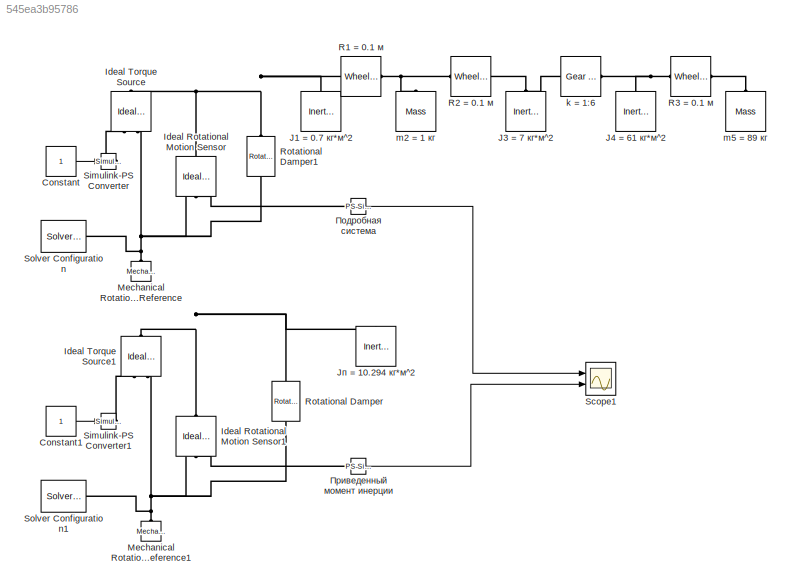
MODEL slx_545ea3b95786
KIND model
CONFIG AbsTol = auto
CONFIG EnableMultiTasking = off
CONFIG FixedStep = auto
CONFIG MaxStep = auto
CONFIG MinStep = auto
CONFIG RelTol = 1e-3
CONFIG SampleTimeConstraint = Unconstrained
CONFIG SolverName = VariableStepAuto
CONFIG StartTime = 0.0
CONFIG StopTime = 5
BLOCK [Constant] Constant
BLOCK [Constant] Constant1
BLOCK [Reference] Ideal Rotational Motion Sensor  REF=fl_lib/Mechanical/Mechanical Sensors/Ideal Rotational
Motion Sensor
  NameLocation = left
  Ports = [0, 0, 0, 0, 0, 1, 3]
  SourceBlock = fl_lib/Mechanical/Mechanical Sensors/Ideal Rotational\nMotion Sensor
  SourceProductBaseCode = SS
  SourceType = Ideal Rotational\nMotion Sensor
BLOCK [Reference] Ideal Rotational Motion Sensor1  REF=fl_lib/Mechanical/Mechanical Sensors/Ideal Rotational
Motion Sensor
  NameLocation = left
  Ports = [0, 0, 0, 0, 0, 1, 3]
  SourceBlock = fl_lib/Mechanical/Mechanical Sensors/Ideal Rotational\nMotion Sensor
  SourceProductBaseCode = SS
  SourceType = Ideal Rotational\nMotion Sensor
BLOCK [Reference] Ideal Torque Source  REF=fl_lib/Mechanical/Mechanical Sources/Ideal Torque Source
  NameLocation = right
  Ports = [0, 0, 0, 0, 0, 1, 2]
  SourceBlock = fl_lib/Mechanical/Mechanical Sources/Ideal Torque Source
  SourceProductBaseCode = SS
  SourceType = Ideal Torque Source
BLOCK [Reference] Ideal Torque Source1  REF=fl_lib/Mechanical/Mechanical Sources/Ideal Torque Source
  NameLocation = right
  Ports = [0, 0, 0, 0, 0, 1, 2]
  SourceBlock = fl_lib/Mechanical/Mechanical Sources/Ideal Torque Source
  SourceProductBaseCode = SS
  SourceType = Ideal Torque Source
BLOCK [Reference] J1 = 0.7 кг*м^2  REF=fl_lib/Mechanical/Rotational Elements/Inertia
  Ports = [0, 0, 0, 0, 0, 1]
  SourceBlock = fl_lib/Mechanical/Rotational Elements/Inertia
  SourceProductBaseCode = SS
  SourceType = Inertia
BLOCK [Reference] J3 = 7 кг*м^2  REF=fl_lib/Mechanical/Rotational Elements/Inertia
  Ports = [0, 0, 0, 0, 0, 1]
  SourceBlock = fl_lib/Mechanical/Rotational Elements/Inertia
  SourceProductBaseCode = SS
  SourceType = Inertia
BLOCK [Reference] J4 = 61 кг*м^2  REF=fl_lib/Mechanical/Rotational Elements/Inertia
  Ports = [0, 0, 0, 0, 0, 1]
  SourceBlock = fl_lib/Mechanical/Rotational Elements/Inertia
  SourceProductBaseCode = SS
  SourceType = Inertia
BLOCK [Reference] Jп = 10.294 кг*м^2  REF=fl_lib/Mechanical/Rotational Elements/Inertia
  Ports = [0, 0, 0, 0, 0, 1]
  SourceBlock = fl_lib/Mechanical/Rotational Elements/Inertia
  SourceProductBaseCode = SS
  SourceType = Inertia
BLOCK [Reference] Mechanical Rotational Reference  REF=fl_lib/Mechanical/Rotational Elements/Mechanical
Rotational Reference
  NameLocation = right
  Ports = [0, 0, 0, 0, 0, 1]
  SourceBlock = fl_lib/Mechanical/Rotational Elements/Mechanical\nRotational Reference
  SourceProductBaseCode = SS
  SourceType = Mechanical\nRotational Reference
BLOCK [Reference] Mechanical Rotational Reference1  REF=fl_lib/Mechanical/Rotational Elements/Mechanical
Rotational Reference
  NameLocation = right
  Ports = [0, 0, 0, 0, 0, 1]
  SourceBlock = fl_lib/Mechanical/Rotational Elements/Mechanical\nRotational Reference
  SourceProductBaseCode = SS
  SourceType = Mechanical\nRotational Reference
BLOCK [Reference] R1 = 0.1 м  REF=fl_lib/Mechanical/Mechanisms/Wheel and Axle
  NameLocation = top
  Ports = [0, 0, 0, 0, 0, 1, 1]
  SourceBlock = fl_lib/Mechanical/Mechanisms/Wheel and Axle
  SourceProductBaseCode = SS
  SourceType = Wheel and Axle
BLOCK [Reference] R2 = 0.1 м  REF=fl_lib/Mechanical/Mechanisms/Wheel and Axle
  NameLocation = top
  Ports = [0, 0, 0, 0, 0, 1, 1]
  SourceBlock = fl_lib/Mechanical/Mechanisms/Wheel and Axle
  SourceProductBaseCode = SS
  SourceType = Wheel and Axle
BLOCK [Reference] R3 = 0.1 м  REF=fl_lib/Mechanical/Mechanisms/Wheel and Axle
  NameLocation = top
  Ports = [0, 0, 0, 0, 0, 1, 1]
  SourceBlock = fl_lib/Mechanical/Mechanisms/Wheel and Axle
  SourceProductBaseCode = SS
  SourceType = Wheel and Axle
BLOCK [Reference] Rotational Damper  REF=fl_lib/Mechanical/Rotational Elements/Rotational Damper
  NameLocation = left
  Ports = [0, 0, 0, 0, 0, 1, 1]
  SourceBlock = fl_lib/Mechanical/Rotational Elements/Rotational Damper
  SourceProductBaseCode = SS
  SourceType = Rotational Damper
BLOCK [Reference] Rotational Damper1  REF=fl_lib/Mechanical/Rotational Elements/Rotational Damper
  NameLocation = left
  Ports = [0, 0, 0, 0, 0, 1, 1]
  SourceBlock = fl_lib/Mechanical/Rotational Elements/Rotational Damper
  SourceProductBaseCode = SS
  SourceType = Rotational Damper
BLOCK [Scope] Scope1
  Floating = off
  NumInputPorts = 2
  Ports = [2]
  ScopeSpecificationString = Simulink.scopes.TimeScopeBlockCfg('CurrentConfiguration', extmgr.ConfigurationSet(extmgr.Configuration('Core','General UI',true,'FigureColor',[1 1 1]),extmgr.Configuration('Core','Source UI',true),extmgr.Configuration('Sources','WiredSimulink',true,'DataLoggingVariableName','ScopeData1'),extmgr.Configuration('Visuals','Time Domain',true,'SerializedDisplays',{struct('MinYLimReal','-0.00833','MaxYLi...<+1637ch>
BLOCK [Reference] Simulink-PS Converter  REF=nesl_utility/Simulink-PS
Converter
  Ports = [1, 0, 0, 0, 0, 0, 1]
  SourceBlock = nesl_utility/Simulink-PS\nConverter
  SourceProductBaseCode = PW,SS
  SourceType = Simulink-PS\nConverter
BLOCK [Reference] Simulink-PS Converter1  REF=nesl_utility/Simulink-PS
Converter
  Ports = [1, 0, 0, 0, 0, 0, 1]
  SourceBlock = nesl_utility/Simulink-PS\nConverter
  SourceProductBaseCode = PW,SS
  SourceType = Simulink-PS\nConverter
BLOCK [Reference] Solver Configuration  REF=nesl_utility/Solver
Configuration
  Ports = [0, 0, 0, 0, 0, 0, 1]
  SourceBlock = nesl_utility/Solver\nConfiguration
  SourceProductBaseCode = PW,SS
  SourceType = Solver\nConfiguration
BLOCK [Reference] Solver Configuration1  REF=nesl_utility/Solver
Configuration
  Ports = [0, 0, 0, 0, 0, 0, 1]
  SourceBlock = nesl_utility/Solver\nConfiguration
  SourceProductBaseCode = PW,SS
  SourceType = Solver\nConfiguration
BLOCK [Reference] k = 1:6  REF=fl_lib/Mechanical/Mechanisms/Gear Box
  NameLocation = top
  Ports = [0, 0, 0, 0, 0, 1, 1]
  SourceBlock = fl_lib/Mechanical/Mechanisms/Gear Box
  SourceProductBaseCode = SS
  SourceType = Gear Box
BLOCK [Reference] m2 = 1 кг  REF=fl_lib/Mechanical/Translational
Elements/Mass
  Ports = [0, 0, 0, 0, 0, 1]
  SourceBlock = fl_lib/Mechanical/Translational\nElements/Mass
  SourceProductBaseCode = SS
  SourceType = Mass
BLOCK [Reference] m5 = 89 кг  REF=fl_lib/Mechanical/Translational
Elements/Mass
  Ports = [0, 0, 0, 0, 0, 1]
  SourceBlock = fl_lib/Mechanical/Translational\nElements/Mass
  SourceProductBaseCode = SS
  SourceType = Mass
BLOCK [Reference] Подробная система  REF=nesl_utility/PS-Simulink
Converter
  Ports = [0, 1, 0, 0, 0, 1]
  SourceBlock = nesl_utility/PS-Simulink\nConverter
  SourceProductBaseCode = PW,SS
  SourceType = PS-Simulink\nConverter
BLOCK [Reference] Приведенный момент инерции  REF=nesl_utility/PS-Simulink
Converter
  Ports = [0, 1, 0, 0, 0, 1]
  SourceBlock = nesl_utility/PS-Simulink\nConverter
  SourceProductBaseCode = PW,SS
  SourceType = PS-Simulink\nConverter
LINE Constant1:1 -> Simulink-PS Converter1:1
LINE Constant:1 -> Simulink-PS Converter:1
LINE Подробная система:1 -> Scope1:1
LINE Приведенный момент инерции:1 -> Scope1:2
PNET net1: Ideal Rotational Motion Sensor1:LConn1 -- Ideal Torque Source1:LConn1 -- Jп = 10.294 кг*м^2:LConn1 -- Rotational Damper:LConn1
PNET net2: Ideal Rotational Motion Sensor1:RConn1 -- Ideal Torque Source1:RConn2 -- Mechanical Rotational Reference1:LConn1 -- Rotational Damper:RConn1 -- Solver Configuration1:RConn1
PLINE Ideal Rotational Motion Sensor1:RConn2 -- Приведенный момент инерции:LConn1
PNET net3: Ideal Rotational Motion Sensor:LConn1 -- Ideal Torque Source:LConn1 -- J1 = 0.7 кг*м^2:LConn1 -- R1 = 0.1 м:LConn1 -- Rotational Damper1:LConn1
PNET net4: Ideal Rotational Motion Sensor:RConn1 -- Ideal Torque Source:RConn2 -- Mechanical Rotational Reference:LConn1 -- Rotational Damper1:RConn1 -- Solver Configuration:RConn1
PLINE Ideal Rotational Motion Sensor:RConn2 -- Подробная система:LConn1
PLINE Ideal Torque Source1:RConn1 -- Simulink-PS Converter1:RConn1
PLINE Ideal Torque Source:RConn1 -- Simulink-PS Converter:RConn1
PNET net5: J3 = 7 кг*м^2:LConn1 -- R2 = 0.1 м:LConn1 -- k = 1:6:LConn1
PNET net6: J4 = 61 кг*м^2:LConn1 -- R3 = 0.1 м:LConn1 -- k = 1:6:RConn1
PNET net7: R1 = 0.1 м:RConn1 -- R2 = 0.1 м:RConn1 -- m2 = 1 кг:LConn1
PLINE R3 = 0.1 м:RConn1 -- m5 = 89 кг:LConn1
note: PNET lines group multi-terminal physical nets as a canonical sorted terminal list (undirected conserving connections); 2-terminal nets keep the pairwise PLINE form
